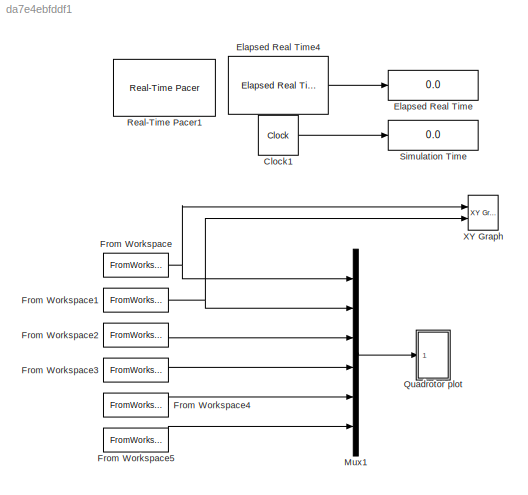
MODEL slx_da7e4ebfddf1
KIND model
CONFIG AbsTol = auto
CONFIG FixedStep = Ts
CONFIG MaxStep = auto
CONFIG MinStep = auto
CONFIG RelTol = 1e-3
CONFIG SampleTimeConstraint = Unconstrained
CONFIG Solver = FixedStepDiscrete
CONFIG SolverMode = Auto
CONFIG SolverName = FixedStepDiscrete
CONFIG StartTime = 0.0
CONFIG StopTime = Time
BLOCK [Clock] Clock1
BLOCK [Display] Elapsed Real Time
  Decimation = 2
  Ports = [1]
BLOCK [Reference] Elapsed Real Time4  REF=realtime_pacer_lib/Elapsed Real Time
  Ports = [0, 1]
  SourceBlock = realtime_pacer_lib/Elapsed Real Time
  SourceType = RealTime_Elapsed
BLOCK [FromWorkspace] From Workspace
  VariableName = x
  ZeroCross = on
BLOCK [FromWorkspace] From Workspace1
  VariableName = y
  ZeroCross = on
BLOCK [FromWorkspace] From Workspace2
  VariableName = z
  ZeroCross = on
BLOCK [FromWorkspace] From Workspace3
  VariableName = yaw
  ZeroCross = on
BLOCK [FromWorkspace] From Workspace4
  VariableName = pitch
  ZeroCross = on
BLOCK [FromWorkspace] From Workspace5
  VariableName = roll
  ZeroCross = on
BLOCK [Mux] Mux1
  DisplayOption = bar
  Inputs = 6
  Ports = [6, 1]
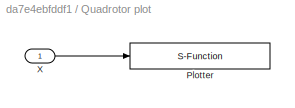
BLOCK [SubSystem] Quadrotor plot
  AncestorBlock = roblocks/Robot Graphics/Quadrotor plot
  Ports = [1]
  RequestExecContextInheritance = off
  Variant = off
BLOCK [S-Function] Quadrotor plot/Plotter
  EnableBusSupport = off
  FunctionName = quadrotor_plot
  Parameters = [xydim, zdim], 1, 1,quad
  Ports = [1]
  SFunctionDeploymentMode = off
BLOCK [Inport] Quadrotor plot/X
  IconDisplay = Port number
BLOCK [Reference] Real-Time Pacer1  REF=realtime_pacer_lib/Real-Time Pacer
  Ports = []
  SourceBlock = realtime_pacer_lib/Real-Time Pacer
  SourceType = RealTime_Pacer
BLOCK [Display] Simulation Time
  Decimation = 2
  Ports = [1]
BLOCK [Reference] XY Graph  REF=simulink/Sinks/XY Graph
  Ports = [2]
  SourceBlock = simulink/Sinks/XY Graph
  SourceType = XY scope.
LINE Clock1:1 -> Simulation Time:1
LINE Elapsed Real Time4:1 -> Elapsed Real Time:1
NET From Workspace1:1 -> Mux1:2, XY Graph:2
LINE From Workspace2:1 -> Mux1:3
LINE From Workspace3:1 -> Mux1:4
LINE From Workspace4:1 -> Mux1:5
LINE From Workspace5:1 -> Mux1:6
NET From Workspace:1 -> Mux1:1, XY Graph:1
LINE Mux1:1 -> Quadrotor plot:1
note: NET lines group one-source signal fan-out (src -> all destinations, sorted); 1:1 wires keep LINE
